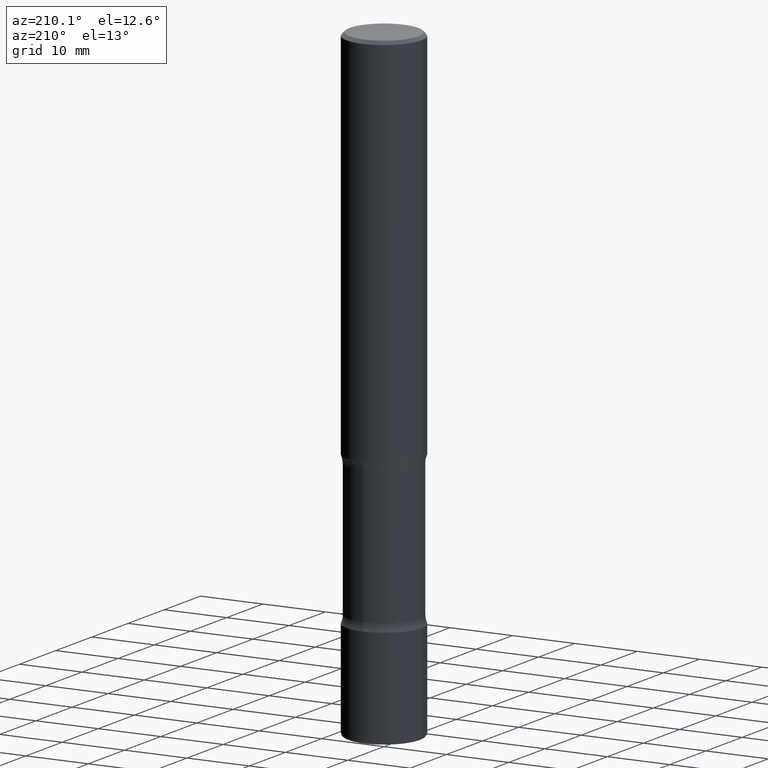
[diagram: clean part render]
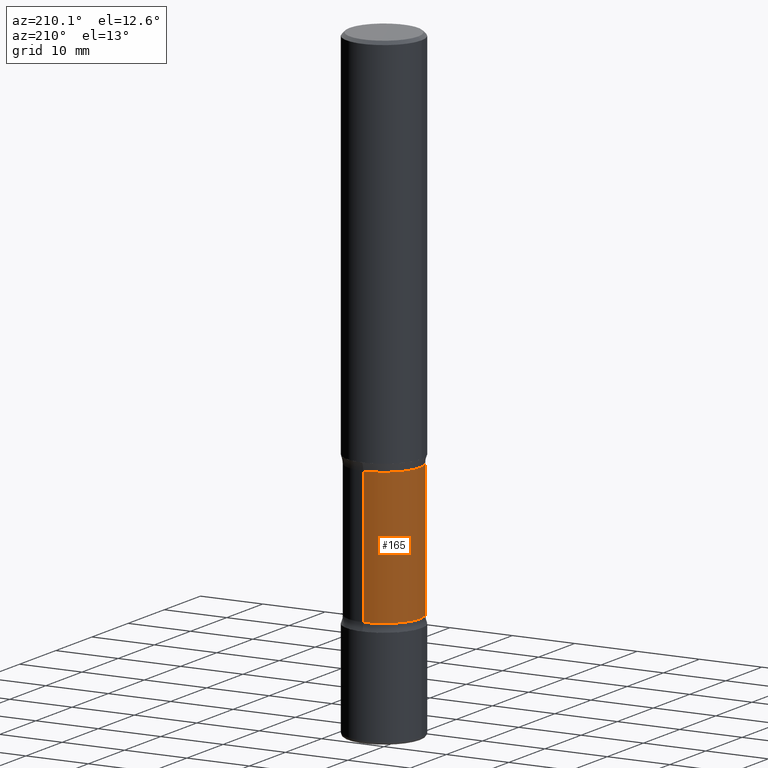
[diagram: same view with one face highlighted and labeled with its STEP entity id]
A machine part, auxiliary view. The second image highlights one B-rep face of the part: STEP entity #165.
In plain terms, the highlighted cylindrical surface (partial cylindrical patch) has radius 5.7391 mm, axis along (0, -0, -1).
Its self-contained STEP definition (entity closure, byte-faithful):
#23 = CARTESIAN_POINT ( 'NONE',  ( 1.577800417023309542E-15, 0.2259499999999864672, -3.937000000000000721 ) ) ;
#26 = CARTESIAN_POINT ( 'NONE',  ( 7.959843264591818864E-29, -1.138267340980399904E-14, -3.257527452153434755 ) ) ;
#35 = EDGE_CURVE ( 'NONE', #413, #116, #279, .T. ) ;
#45 = ORIENTED_EDGE ( 'NONE', *, *, #442, .F. ) ;
#67 = CARTESIAN_POINT ( 'NONE',  ( 9.708351723968114409E-29, -1.363062268620181866E-14, -3.937000000000000277 ) ) ;
#94 = AXIS2_PLACEMENT_3D ( 'NONE', #26, #143, #117 ) ;
#100 = DIRECTION ( 'NONE',  ( 6.982962677686265922E-15, 1.000000000000000000, -2.418099573944910042E-15 ) ) ;
#110 = CARTESIAN_POINT ( 'NONE',  ( 1.577800417023291793E-15, 0.2259499999999886877, -3.257527452153435199 ) ) ;
#113 = AXIS2_PLACEMENT_3D ( 'NONE', #67, #365, #100 ) ;
#116 = VERTEX_POINT ( 'NONE', #284 ) ;
#117 = DIRECTION ( 'NONE',  ( 6.982962677686266711E-15, 1.000000000000000000, -2.418099573944910436E-15 ) ) ;
#134 = ORIENTED_EDGE ( 'NONE', *, *, #438, .T. ) ;
#136 = VECTOR ( 'NONE', #498, 39.37007874015748143 ) ;
#140 = VERTEX_POINT ( 'NONE', #110 ) ;
#143 = DIRECTION ( 'NONE',  ( 2.573332013070723283E-29, -3.308373949061201717E-15, -1.000000000000000000 ) ) ;
#165 = ADVANCED_FACE ( 'NONE', ( #488 ), #195, .T. ) ;
#195 = CYLINDRICAL_SURFACE ( 'NONE', #113, 0.2259500000000000952 ) ;
#271 = CARTESIAN_POINT ( 'NONE',  ( 1.577800417023270691E-15, 0.2259499999999915743, -2.411772547846566805 ) ) ;
#279 = LINE ( 'NONE', #322, #136 ) ;
#280 = DIRECTION ( 'NONE',  ( 2.573332013070723283E-29, -3.308373949061201717E-15, -1.000000000000000000 ) ) ;
#284 = CARTESIAN_POINT ( 'NONE',  ( -1.585289574834976853E-15, -0.2259500000000114195, -3.257527452153434311 ) ) ;
#303 = VECTOR ( 'NONE', #538, 39.37007874015748143 ) ;
#322 = CARTESIAN_POINT ( 'NONE',  ( -1.550129522596380948E-15, -0.2259500000000137232, -3.936999999999999389 ) ) ;
#326 = AXIS2_PLACEMENT_3D ( 'NONE', #445, #280, #403 ) ;
#340 = EDGE_LOOP ( 'NONE', ( #348, #134, #342, #45 ) ) ;
#342 = ORIENTED_EDGE ( 'NONE', *, *, #431, .T. ) ;
#346 = CIRCLE ( 'NONE', #94, 0.2259500000000000397 ) ;
#348 = ORIENTED_EDGE ( 'NONE', *, *, #35, .F. ) ;
#365 = DIRECTION ( 'NONE',  ( 2.573332013070723283E-29, -3.308373949061201717E-15, -1.000000000000000000 ) ) ;
#403 = DIRECTION ( 'NONE',  ( 6.982962677686265922E-15, 1.000000000000000000, -3.627149360917363879E-15 ) ) ;
#413 = VERTEX_POINT ( 'NONE', #532 ) ;
#428 = VERTEX_POINT ( 'NONE', #271 ) ;
#431 = EDGE_CURVE ( 'NONE', #428, #140, #440, .T. ) ;
#438 = EDGE_CURVE ( 'NONE', #413, #428, #555, .T. ) ;
#440 = LINE ( 'NONE', #23, #303 ) ;
#442 = EDGE_CURVE ( 'NONE', #116, #140, #346, .T. ) ;
#445 = CARTESIAN_POINT ( 'NONE',  ( 5.783435094127386859E-29, -8.584599917104405503E-15, -2.411772547846565917 ) ) ;
#488 = FACE_OUTER_BOUND ( 'NONE', #340, .T. ) ;
#498 = DIRECTION ( 'NONE',  ( 2.573332013070723283E-29, -3.308373949061201717E-15, -1.000000000000000000 ) ) ;
#532 = CARTESIAN_POINT ( 'NONE',  ( -1.585289574835001111E-15, -0.2259500000000087272, -2.411772547846565029 ) ) ;
#538 = DIRECTION ( 'NONE',  ( 2.573332013070723283E-29, -3.308373949061201717E-15, -1.000000000000000000 ) ) ;
#555 = CIRCLE ( 'NONE', #326, 0.2259500000000001507 ) ;